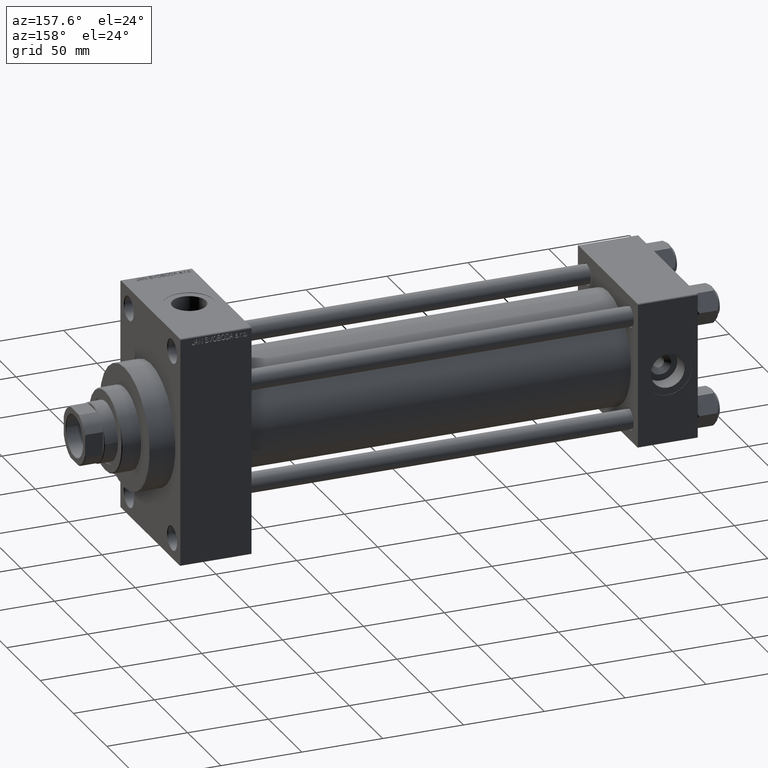
[diagram: clean part render]
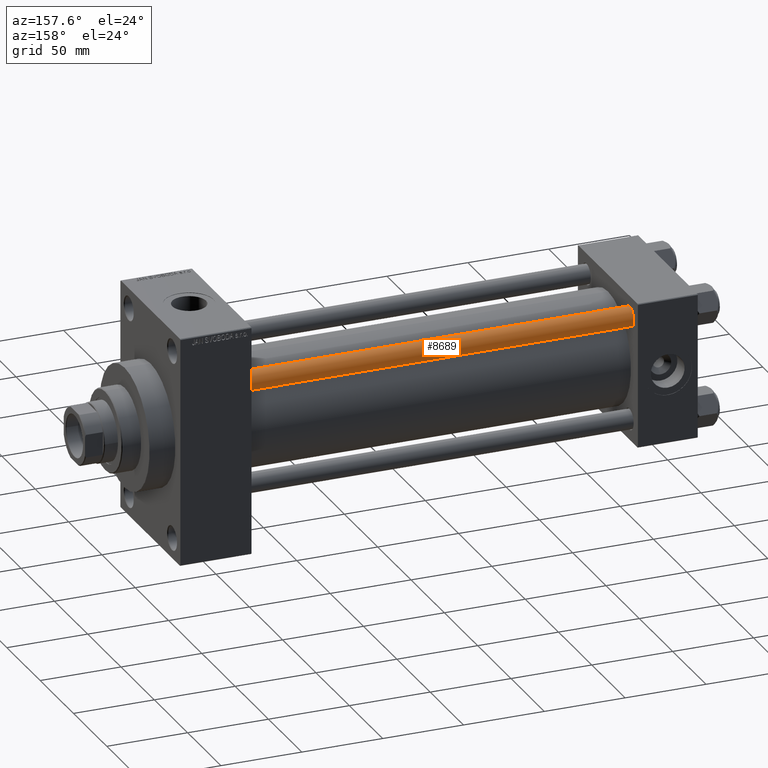
[diagram: same view with one face highlighted and labeled with its STEP entity id]
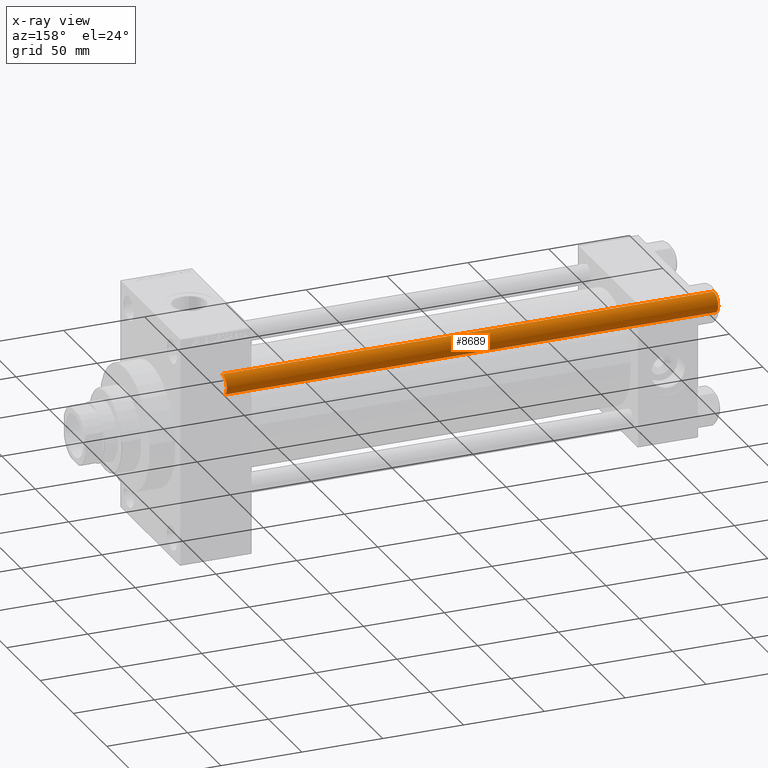
[diagram: x-ray of the same camera — body ghosted, the highlighted face saturated]
A machine part, auxiliary view. The second image highlights one B-rep face of the part: STEP entity #8689.
The next image is the same camera in x-ray: the body ghosted, the highlighted face saturated — about 0% of this face is hidden behind the body in this view.
In plain terms, the highlighted cylindrical surface (edge-blend (fillet) strip) has radius 6 mm, axis along (-1, -0, 0).
Its self-contained STEP definition (entity closure, byte-faithful):
#1710 = ORIENTED_EDGE ( 'NONE', *, *, #17503, .T. ) ;
#2243 = AXIS2_PLACEMENT_3D ( 'NONE', #27927, #20993, #5074 ) ;
#2766 = ORIENTED_EDGE ( 'NONE', *, *, #9290, .T. ) ;
#2839 = EDGE_LOOP ( 'NONE', ( #2766, #1710, #32357, #42201 ) ) ;
#5074 = DIRECTION ( 'NONE',  ( 1.000000000000000000, 0.000000000000000000, 0.000000000000000000 ) ) ;
#5185 = AXIS2_PLACEMENT_3D ( 'NONE', #30240, #37840, #45273 ) ;
#5500 = VERTEX_POINT ( 'NONE', #34930 ) ;
#6366 = DIRECTION ( 'NONE',  ( 0.000000000000000000, 0.000000000000000000, -1.000000000000000000 ) ) ;
#7035 = VERTEX_POINT ( 'NONE', #45374 ) ;
#8689 = ADVANCED_FACE ( 'NONE', ( #26432 ), #23296, .T. ) ;
#8929 = CARTESIAN_POINT ( 'NONE',  ( 6.000000000000000888, 7.347880794884120722E-16, 305.0000000000000000 ) ) ;
#9290 = EDGE_CURVE ( 'NONE', #7035, #16543, #40249, .T. ) ;
#12356 = EDGE_CURVE ( 'NONE', #20777, #5500, #31983, .T. ) ;
#12682 = DIRECTION ( 'NONE',  ( -0.000000000000000000, -0.000000000000000000, -1.000000000000000000 ) ) ;
#13043 = CARTESIAN_POINT ( 'NONE',  ( 0.000000000000000000, 0.000000000000000000, 304.5000000000000000 ) ) ;
#13992 = DIRECTION ( 'NONE',  ( 1.000000000000000000, 0.000000000000000000, 0.000000000000000000 ) ) ;
#16543 = VERTEX_POINT ( 'NONE', #43097 ) ;
#17503 = EDGE_CURVE ( 'NONE', #16543, #20777, #27567, .T. ) ;
#20777 = VERTEX_POINT ( 'NONE', #31281 ) ;
#20993 = DIRECTION ( 'NONE',  ( -0.000000000000000000, -0.000000000000000000, 1.000000000000000000 ) ) ;
#23296 = CYLINDRICAL_SURFACE ( 'NONE', #5185, 6.000000000000000888 ) ;
#26432 = FACE_OUTER_BOUND ( 'NONE', #2839, .T. ) ;
#26792 = CARTESIAN_POINT ( 'NONE',  ( -6.000000000000000888, 0.000000000000000000, 305.0000000000000000 ) ) ;
#27567 = LINE ( 'NONE', #8929, #28338 ) ;
#27927 = CARTESIAN_POINT ( 'NONE',  ( 0.000000000000000000, 0.000000000000000000, 0.5000000000000004441 ) ) ;
#28338 = VECTOR ( 'NONE', #31618, 1000.000000000000000 ) ;
#29653 = VECTOR ( 'NONE', #12682, 1000.000000000000000 ) ;
#30240 = CARTESIAN_POINT ( 'NONE',  ( 0.000000000000000000, 0.000000000000000000, 305.0000000000000000 ) ) ;
#30336 = AXIS2_PLACEMENT_3D ( 'NONE', #13043, #6366, #13992 ) ;
#31281 = CARTESIAN_POINT ( 'NONE',  ( 6.000000000000000888, 7.347880794884120722E-16, 0.5000000000000004441 ) ) ;
#31618 = DIRECTION ( 'NONE',  ( -0.000000000000000000, -0.000000000000000000, -1.000000000000000000 ) ) ;
#31983 = CIRCLE ( 'NONE', #2243, 6.000000000000000888 ) ;
#32357 = ORIENTED_EDGE ( 'NONE', *, *, #12356, .T. ) ;
#34930 = CARTESIAN_POINT ( 'NONE',  ( -6.000000000000000888, 0.000000000000000000, 0.5000000000000004441 ) ) ;
#37840 = DIRECTION ( 'NONE',  ( -0.000000000000000000, -0.000000000000000000, -1.000000000000000000 ) ) ;
#37975 = LINE ( 'NONE', #26792, #29653 ) ;
#38166 = EDGE_CURVE ( 'NONE', #7035, #5500, #37975, .T. ) ;
#40249 = CIRCLE ( 'NONE', #30336, 6.000000000000000888 ) ;
#42201 = ORIENTED_EDGE ( 'NONE', *, *, #38166, .F. ) ;
#43097 = CARTESIAN_POINT ( 'NONE',  ( 6.000000000000000888, 7.347880794884120722E-16, 304.5000000000000000 ) ) ;
#45273 = DIRECTION ( 'NONE',  ( -1.000000000000000000, 0.000000000000000000, 0.000000000000000000 ) ) ;
#45374 = CARTESIAN_POINT ( 'NONE',  ( -6.000000000000000888, 0.000000000000000000, 304.5000000000000000 ) ) ;